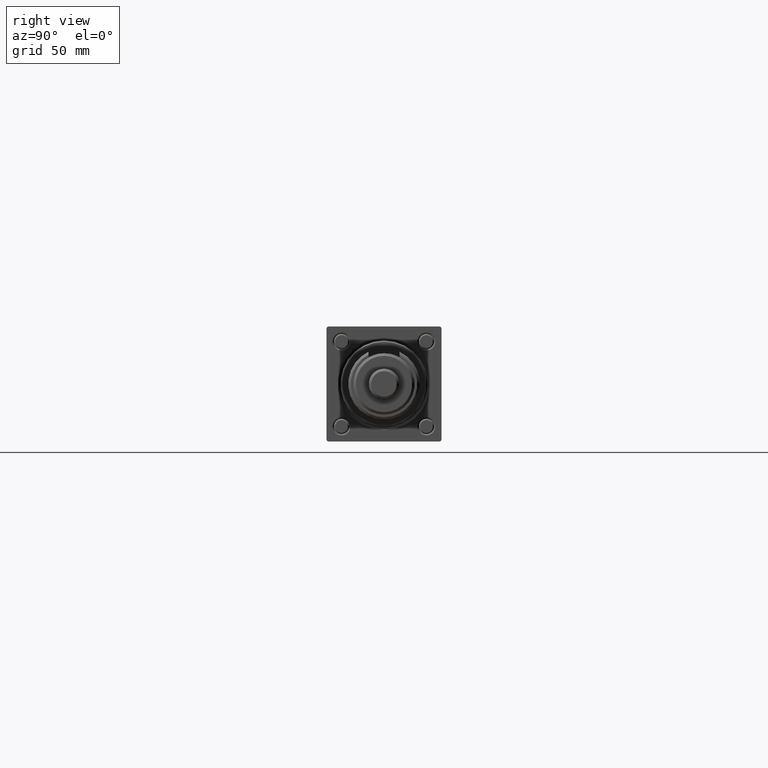
[diagram: clean part render]
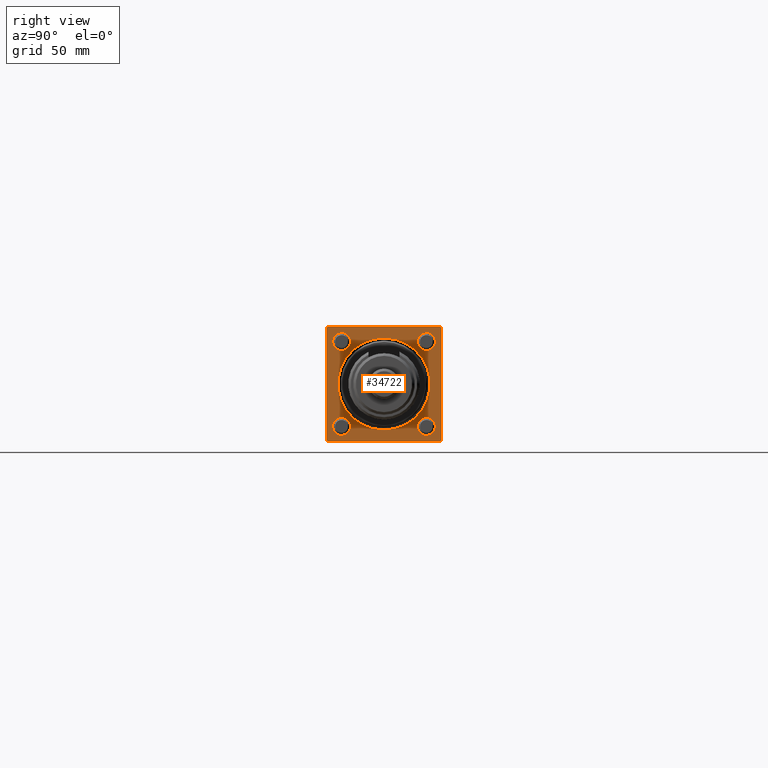
[diagram: same view with one face highlighted and labeled with its STEP entity id]
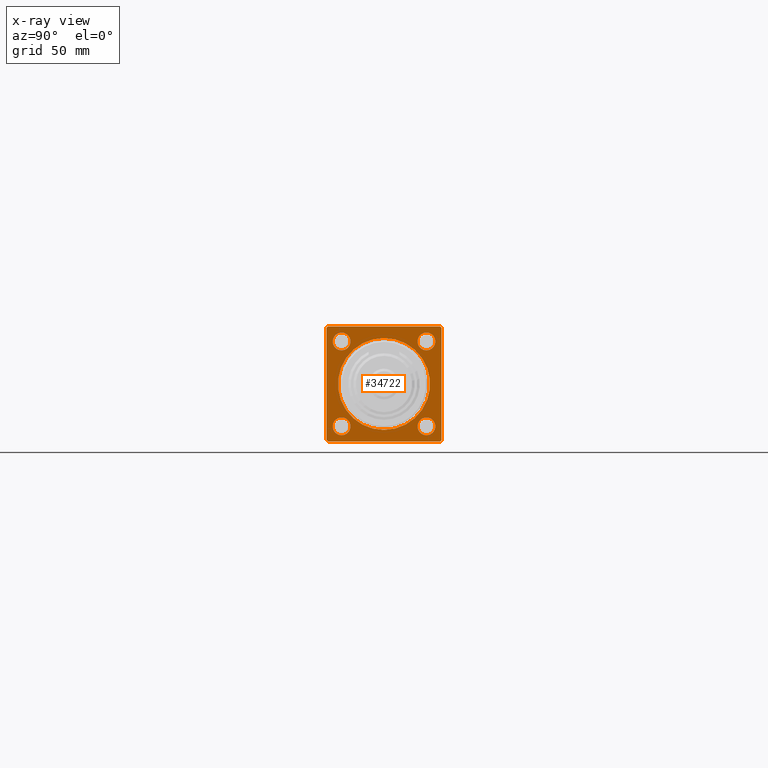
[diagram: x-ray of the same camera — body ghosted, the highlighted face saturated]
A machine part, right view. The second image highlights one B-rep face of the part: STEP entity #34722.
The next image is the same camera in x-ray: the body ghosted, the highlighted face saturated — about 0% of this face is hidden behind the body in this view.
In plain terms, the highlighted planar face has unit normal (-1, 0, 0).
Its self-contained STEP definition (entity closure, byte-faithful):
#190 = DIRECTION ( 'NONE',  ( 0.000000000000000000, 0.000000000000000000, 1.000000000000000000 ) ) ;
#570 = CARTESIAN_POINT ( 'NONE',  ( 183.0000000000000000, 16.59999999999999787, 16.60000000000000497 ) ) ;
#955 = CIRCLE ( 'NONE', #28881, 18.00000000000001421 ) ;
#1188 = CARTESIAN_POINT ( 'NONE',  ( 183.0000000000000000, 22.00000000000000355, 22.50000000000000355 ) ) ;
#1239 = CIRCLE ( 'NONE', #8939, 3.499999999999975131 ) ;
#1343 = VECTOR ( 'NONE', #28120, 1000.000000000000114 ) ;
#1359 = CIRCLE ( 'NONE', #33154, 3.499999999999975131 ) ;
#2326 = DIRECTION ( 'NONE',  ( 0.000000000000000000, -1.000000000000000000, -2.312964634635742957E-16 ) ) ;
#2581 = AXIS2_PLACEMENT_3D ( 'NONE', #58138, #40055, #54518 ) ;
#2889 = EDGE_CURVE ( 'NONE', #32906, #38345, #43778, .T. ) ;
#3111 = CARTESIAN_POINT ( 'NONE',  ( 183.0000000000000000, -16.59999999999999076, -13.10000000000003162 ) ) ;
#3367 = AXIS2_PLACEMENT_3D ( 'NONE', #7104, #43297, #15844 ) ;
#3506 = CARTESIAN_POINT ( 'NONE',  ( 183.0000000000000000, 22.50000000000000355, -22.49999999999999645 ) ) ;
#4196 = VECTOR ( 'NONE', #2326, 1000.000000000000000 ) ;
#4543 = CARTESIAN_POINT ( 'NONE',  ( 183.0000000000000000, 22.50000000000000355, 22.50000000000000355 ) ) ;
#4859 = VERTEX_POINT ( 'NONE', #31009 ) ;
#4954 = EDGE_CURVE ( 'NONE', #17872, #32239, #34329, .T. ) ;
#5315 = PLANE ( 'NONE',  #58169 ) ;
#5615 = VECTOR ( 'NONE', #13279, 1000.000000000000000 ) ;
#5620 = CARTESIAN_POINT ( 'NONE',  ( 183.0000000000000000, 0.000000000000000000, 0.000000000000000000 ) ) ;
#5919 = ORIENTED_EDGE ( 'NONE', *, *, #17321, .T. ) ;
#6399 = EDGE_CURVE ( 'NONE', #51407, #43159, #17058, .T. ) ;
#7104 = CARTESIAN_POINT ( 'NONE',  ( 183.0000000000000000, -16.59999999999999076, -16.60000000000000853 ) ) ;
#7619 = ORIENTED_EDGE ( 'NONE', *, *, #34842, .T. ) ;
#7934 = EDGE_CURVE ( 'NONE', #32906, #33054, #27469, .T. ) ;
#8177 = CIRCLE ( 'NONE', #3367, 3.499999999999975131 ) ;
#8374 = CARTESIAN_POINT ( 'NONE',  ( 183.0000000000000000, 22.00000000000000355, -22.49999999999999645 ) ) ;
#8375 = AXIS2_PLACEMENT_3D ( 'NONE', #16623, #39556, #20878 ) ;
#8939 = AXIS2_PLACEMENT_3D ( 'NONE', #24075, #45793, #19250 ) ;
#9933 = AXIS2_PLACEMENT_3D ( 'NONE', #50856, #33038, #46616 ) ;
#10792 = CARTESIAN_POINT ( 'NONE',  ( 183.0000000000000000, -21.99999999999996803, -22.50000000000000000 ) ) ;
#10912 = CARTESIAN_POINT ( 'NONE',  ( 183.0000000000000000, -16.59999999999999076, -16.60000000000000853 ) ) ;
#10997 = LINE ( 'NONE', #20362, #1343 ) ;
#11199 = ORIENTED_EDGE ( 'NONE', *, *, #52028, .T. ) ;
#11372 = LINE ( 'NONE', #25251, #4196 ) ;
#12361 = CARTESIAN_POINT ( 'NONE',  ( 183.0000000000000000, 16.59999999999999787, -16.60000000000000497 ) ) ;
#12536 = DIRECTION ( 'NONE',  ( 0.000000000000000000, -1.000000000000000000, -7.709882115452476934E-17 ) ) ;
#12885 = VERTEX_POINT ( 'NONE', #52280 ) ;
#13258 = ORIENTED_EDGE ( 'NONE', *, *, #29111, .T. ) ;
#13279 = DIRECTION ( 'NONE',  ( 0.000000000000000000, 0.000000000000000000, -1.000000000000000000 ) ) ;
#14053 = DIRECTION ( 'NONE',  ( -1.000000000000000000, 0.000000000000000000, -0.000000000000000000 ) ) ;
#15256 = VERTEX_POINT ( 'NONE', #48274 ) ;
#15844 = DIRECTION ( 'NONE',  ( 0.000000000000000000, 0.000000000000000000, 1.000000000000000000 ) ) ;
#16623 = CARTESIAN_POINT ( 'NONE',  ( 183.0000000000000000, 0.000000000000000000, 0.000000000000000000 ) ) ;
#17058 = CIRCLE ( 'NONE', #8375, 18.00000000000001421 ) ;
#17321 = EDGE_CURVE ( 'NONE', #43159, #51407, #955, .T. ) ;
#17412 = CIRCLE ( 'NONE', #47245, 3.499999999999975131 ) ;
#17872 = VERTEX_POINT ( 'NONE', #52221 ) ;
#17924 = ORIENTED_EDGE ( 'NONE', *, *, #49773, .T. ) ;
#18670 = LINE ( 'NONE', #50943, #41814 ) ;
#18865 = EDGE_LOOP ( 'NONE', ( #56399, #35432 ) ) ;
#19250 = DIRECTION ( 'NONE',  ( 0.000000000000000000, 0.000000000000000000, 1.000000000000000000 ) ) ;
#19266 = ORIENTED_EDGE ( 'NONE', *, *, #52587, .T. ) ;
#19297 = CARTESIAN_POINT ( 'NONE',  ( 183.0000000000000000, 0.000000000000000000, 0.000000000000000000 ) ) ;
#19982 = DIRECTION ( 'NONE',  ( 0.000000000000000000, 0.000000000000000000, 1.000000000000000000 ) ) ;
#20103 = EDGE_CURVE ( 'NONE', #24303, #48803, #17412, .T. ) ;
#20362 = CARTESIAN_POINT ( 'NONE',  ( 183.0000000000000000, 22.50000000000000355, -21.99999999999999645 ) ) ;
#20591 = CARTESIAN_POINT ( 'NONE',  ( 183.0000000000000000, -16.59999999999999076, 20.09999999999998721 ) ) ;
#20872 = CARTESIAN_POINT ( 'NONE',  ( 183.0000000000000000, 22.00000000000000355, 22.50000000000000355 ) ) ;
#20878 = DIRECTION ( 'NONE',  ( 0.000000000000000000, 0.000000000000000000, 1.000000000000000000 ) ) ;
#23285 = CARTESIAN_POINT ( 'NONE',  ( 183.0000000000000000, 0.000000000000000000, -18.00000000000001421 ) ) ;
#23384 = EDGE_LOOP ( 'NONE', ( #19266, #59144 ) ) ;
#23799 = DIRECTION ( 'NONE',  ( 0.000000000000000000, 0.7071067811865426878, -0.7071067811865524577 ) ) ;
#23947 = ORIENTED_EDGE ( 'NONE', *, *, #28023, .F. ) ;
#24075 = CARTESIAN_POINT ( 'NONE',  ( 183.0000000000000000, -16.59999999999999076, 16.60000000000000853 ) ) ;
#24303 = VERTEX_POINT ( 'NONE', #3111 ) ;
#25251 = CARTESIAN_POINT ( 'NONE',  ( 183.0000000000000000, 22.50000000000000355, 22.50000000000000355 ) ) ;
#25450 = AXIS2_PLACEMENT_3D ( 'NONE', #12361, #30166, #30759 ) ;
#25991 = DIRECTION ( 'NONE',  ( 0.000000000000000000, -0.7071067811865474617, 0.7071067811865474617 ) ) ;
#26323 = EDGE_CURVE ( 'NONE', #36102, #12885, #42601, .T. ) ;
#26398 = VERTEX_POINT ( 'NONE', #34304 ) ;
#26639 = VECTOR ( 'NONE', #25991, 1000.000000000000114 ) ;
#27437 = DIRECTION ( 'NONE',  ( -0.000000000000000000, -0.7071067811865474617, -0.7071067811865474617 ) ) ;
#27469 = LINE ( 'NONE', #4543, #5615 ) ;
#28023 = EDGE_CURVE ( 'NONE', #38481, #40687, #49325, .T. ) ;
#28120 = DIRECTION ( 'NONE',  ( -0.000000000000000000, 0.7071067811865474617, 0.7071067811865474617 ) ) ;
#28647 = DIRECTION ( 'NONE',  ( -1.000000000000000000, 0.000000000000000000, -0.000000000000000000 ) ) ;
#28668 = CARTESIAN_POINT ( 'NONE',  ( 183.0000000000000000, 16.59999999999999787, -20.09999999999998010 ) ) ;
#28881 = AXIS2_PLACEMENT_3D ( 'NONE', #19297, #28647, #43099 ) ;
#29111 = EDGE_CURVE ( 'NONE', #49095, #4859, #40807, .T. ) ;
#30166 = DIRECTION ( 'NONE',  ( -1.000000000000000000, 0.000000000000000000, -0.000000000000000000 ) ) ;
#30759 = DIRECTION ( 'NONE',  ( 0.000000000000000000, 0.000000000000000000, 1.000000000000000000 ) ) ;
#30877 = CARTESIAN_POINT ( 'NONE',  ( 183.0000000000000000, -22.49999999999999645, 22.49999999999999289 ) ) ;
#31009 = CARTESIAN_POINT ( 'NONE',  ( 183.0000000000000000, -22.49999999999999645, -21.99999999999995026 ) ) ;
#31230 = EDGE_LOOP ( 'NONE', ( #11199, #7619 ) ) ;
#31358 = EDGE_CURVE ( 'NONE', #32239, #17872, #1239, .T. ) ;
#31527 = EDGE_LOOP ( 'NONE', ( #43154, #34136 ) ) ;
#31670 = EDGE_CURVE ( 'NONE', #12885, #36102, #54211, .T. ) ;
#31788 = CARTESIAN_POINT ( 'NONE',  ( 183.0000000000000000, 22.50000000000000355, 22.00000000000000355 ) ) ;
#32239 = VERTEX_POINT ( 'NONE', #20591 ) ;
#32271 = ORIENTED_EDGE ( 'NONE', *, *, #7934, .F. ) ;
#32906 = VERTEX_POINT ( 'NONE', #31788 ) ;
#33038 = DIRECTION ( 'NONE',  ( -1.000000000000000000, 0.000000000000000000, -0.000000000000000000 ) ) ;
#33040 = FACE_OUTER_BOUND ( 'NONE', #44463, .T. ) ;
#33054 = VERTEX_POINT ( 'NONE', #33270 ) ;
#33154 = AXIS2_PLACEMENT_3D ( 'NONE', #41499, #14053, #190 ) ;
#33270 = CARTESIAN_POINT ( 'NONE',  ( 183.0000000000000000, 22.50000000000000355, -21.99999999999998224 ) ) ;
#33337 = FACE_BOUND ( 'NONE', #18865, .T. ) ;
#33821 = EDGE_LOOP ( 'NONE', ( #53773, #5919 ) ) ;
#34136 = ORIENTED_EDGE ( 'NONE', *, *, #31670, .T. ) ;
#34304 = CARTESIAN_POINT ( 'NONE',  ( 183.0000000000000000, -21.99999999999998224, 22.49999999999999289 ) ) ;
#34316 = VERTEX_POINT ( 'NONE', #28668 ) ;
#34329 = CIRCLE ( 'NONE', #2581, 3.499999999999975131 ) ;
#34545 = ORIENTED_EDGE ( 'NONE', *, *, #2889, .T. ) ;
#34722 = ADVANCED_FACE ( 'NONE', ( #46619, #42685, #55958, #33337, #52024, #33040 ), #5315, .F. ) ;
#34842 = EDGE_CURVE ( 'NONE', #15256, #34316, #1359, .T. ) ;
#35432 = ORIENTED_EDGE ( 'NONE', *, *, #31358, .T. ) ;
#36102 = VERTEX_POINT ( 'NONE', #42507 ) ;
#36225 = ORIENTED_EDGE ( 'NONE', *, *, #47197, .T. ) ;
#36286 = ORIENTED_EDGE ( 'NONE', *, *, #46187, .T. ) ;
#36772 = EDGE_CURVE ( 'NONE', #4859, #40687, #52109, .T. ) ;
#37262 = CARTESIAN_POINT ( 'NONE',  ( 183.0000000000000000, -22.49999999999999645, 21.99999999999999289 ) ) ;
#37869 = DIRECTION ( 'NONE',  ( -0.000000000000000000, 0.000000000000000000, 1.000000000000000000 ) ) ;
#38345 = VERTEX_POINT ( 'NONE', #1188 ) ;
#38481 = VERTEX_POINT ( 'NONE', #8374 ) ;
#38956 = DIRECTION ( 'NONE',  ( -1.000000000000000000, 0.000000000000000000, -0.000000000000000000 ) ) ;
#39556 = DIRECTION ( 'NONE',  ( -1.000000000000000000, 0.000000000000000000, -0.000000000000000000 ) ) ;
#39901 = CIRCLE ( 'NONE', #25450, 3.499999999999975131 ) ;
#40055 = DIRECTION ( 'NONE',  ( -1.000000000000000000, 0.000000000000000000, -0.000000000000000000 ) ) ;
#40687 = VERTEX_POINT ( 'NONE', #56787 ) ;
#40807 = LINE ( 'NONE', #30877, #57046 ) ;
#41283 = DIRECTION ( 'NONE',  ( 0.000000000000000000, 0.000000000000000000, 1.000000000000000000 ) ) ;
#41499 = CARTESIAN_POINT ( 'NONE',  ( 183.0000000000000000, 16.59999999999999787, -16.60000000000000497 ) ) ;
#41814 = VECTOR ( 'NONE', #27437, 1000.000000000000114 ) ;
#42507 = CARTESIAN_POINT ( 'NONE',  ( 183.0000000000000000, 16.59999999999999787, 13.10000000000002807 ) ) ;
#42601 = CIRCLE ( 'NONE', #57993, 3.499999999999975131 ) ;
#42685 = FACE_BOUND ( 'NONE', #31230, .T. ) ;
#43099 = DIRECTION ( 'NONE',  ( 0.000000000000000000, 0.000000000000000000, 1.000000000000000000 ) ) ;
#43154 = ORIENTED_EDGE ( 'NONE', *, *, #26323, .T. ) ;
#43159 = VERTEX_POINT ( 'NONE', #53795 ) ;
#43297 = DIRECTION ( 'NONE',  ( -1.000000000000000000, 0.000000000000000000, -0.000000000000000000 ) ) ;
#43778 = LINE ( 'NONE', #20872, #26639 ) ;
#44463 = EDGE_LOOP ( 'NONE', ( #13258, #50803, #23947, #36286, #32271, #34545, #17924, #36225 ) ) ;
#45793 = DIRECTION ( 'NONE',  ( -1.000000000000000000, 0.000000000000000000, -0.000000000000000000 ) ) ;
#45808 = DIRECTION ( 'NONE',  ( -1.000000000000000000, 0.000000000000000000, -0.000000000000000000 ) ) ;
#46187 = EDGE_CURVE ( 'NONE', #38481, #33054, #10997, .T. ) ;
#46616 = DIRECTION ( 'NONE',  ( 0.000000000000000000, 0.000000000000000000, 1.000000000000000000 ) ) ;
#46619 = FACE_BOUND ( 'NONE', #23384, .T. ) ;
#47197 = EDGE_CURVE ( 'NONE', #26398, #49095, #18670, .T. ) ;
#47245 = AXIS2_PLACEMENT_3D ( 'NONE', #10912, #38956, #19982 ) ;
#48274 = CARTESIAN_POINT ( 'NONE',  ( 183.0000000000000000, 16.59999999999999787, -13.10000000000002807 ) ) ;
#48803 = VERTEX_POINT ( 'NONE', #58175 ) ;
#49095 = VERTEX_POINT ( 'NONE', #37262 ) ;
#49309 = VECTOR ( 'NONE', #12536, 1000.000000000000000 ) ;
#49325 = LINE ( 'NONE', #3506, #49309 ) ;
#49773 = EDGE_CURVE ( 'NONE', #38345, #26398, #11372, .T. ) ;
#50803 = ORIENTED_EDGE ( 'NONE', *, *, #36772, .T. ) ;
#50856 = CARTESIAN_POINT ( 'NONE',  ( 183.0000000000000000, 16.59999999999999787, 16.60000000000000497 ) ) ;
#50943 = CARTESIAN_POINT ( 'NONE',  ( 183.0000000000000000, -22.49999999999999645, 21.99999999999999289 ) ) ;
#51407 = VERTEX_POINT ( 'NONE', #23285 ) ;
#51440 = DIRECTION ( 'NONE',  ( -1.000000000000000000, 0.000000000000000000, -0.000000000000000000 ) ) ;
#52024 = FACE_BOUND ( 'NONE', #33821, .T. ) ;
#52028 = EDGE_CURVE ( 'NONE', #34316, #15256, #39901, .T. ) ;
#52109 = LINE ( 'NONE', #10792, #56328 ) ;
#52221 = CARTESIAN_POINT ( 'NONE',  ( 183.0000000000000000, -16.59999999999999076, 13.10000000000003162 ) ) ;
#52280 = CARTESIAN_POINT ( 'NONE',  ( 183.0000000000000000, 16.59999999999999787, 20.09999999999998010 ) ) ;
#52587 = EDGE_CURVE ( 'NONE', #48803, #24303, #8177, .T. ) ;
#53773 = ORIENTED_EDGE ( 'NONE', *, *, #6399, .T. ) ;
#53795 = CARTESIAN_POINT ( 'NONE',  ( 183.0000000000000000, 2.204364238465237794E-15, 18.00000000000001421 ) ) ;
#54211 = CIRCLE ( 'NONE', #9933, 3.499999999999975131 ) ;
#54382 = DIRECTION ( 'NONE',  ( 0.000000000000000000, 0.000000000000000000, -1.000000000000000000 ) ) ;
#54518 = DIRECTION ( 'NONE',  ( 0.000000000000000000, 0.000000000000000000, 1.000000000000000000 ) ) ;
#55958 = FACE_BOUND ( 'NONE', #31527, .T. ) ;
#56328 = VECTOR ( 'NONE', #23799, 1000.000000000000000 ) ;
#56399 = ORIENTED_EDGE ( 'NONE', *, *, #4954, .T. ) ;
#56787 = CARTESIAN_POINT ( 'NONE',  ( 183.0000000000000000, -21.99999999999995381, -22.50000000000000000 ) ) ;
#57046 = VECTOR ( 'NONE', #54382, 1000.000000000000000 ) ;
#57993 = AXIS2_PLACEMENT_3D ( 'NONE', #570, #45808, #41283 ) ;
#58138 = CARTESIAN_POINT ( 'NONE',  ( 183.0000000000000000, -16.59999999999999076, 16.60000000000000853 ) ) ;
#58169 = AXIS2_PLACEMENT_3D ( 'NONE', #5620, #51440, #37869 ) ;
#58175 = CARTESIAN_POINT ( 'NONE',  ( 183.0000000000000000, -16.59999999999999076, -20.09999999999998366 ) ) ;
#59144 = ORIENTED_EDGE ( 'NONE', *, *, #20103, .T. ) ;